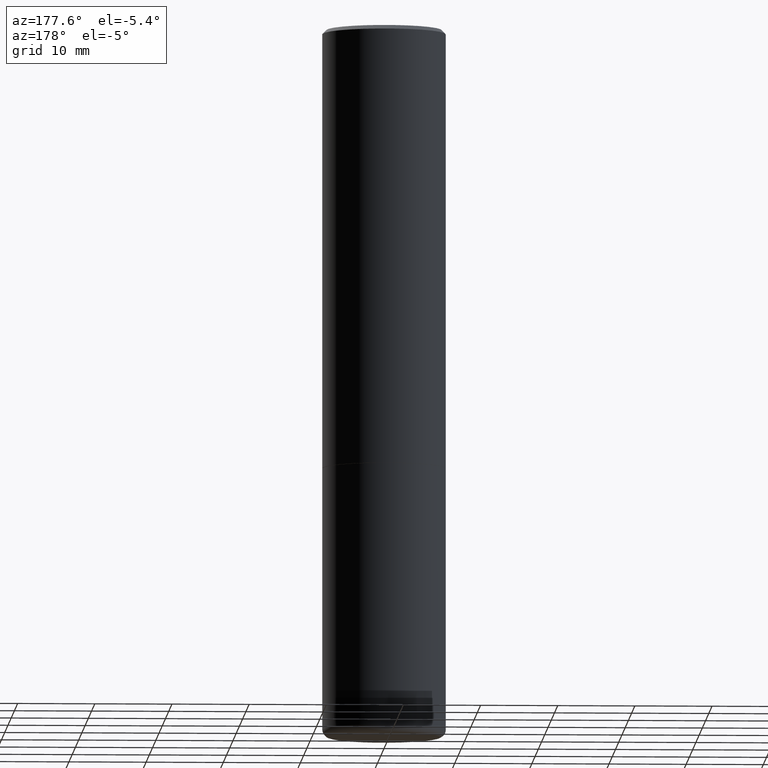
[diagram: clean part render]
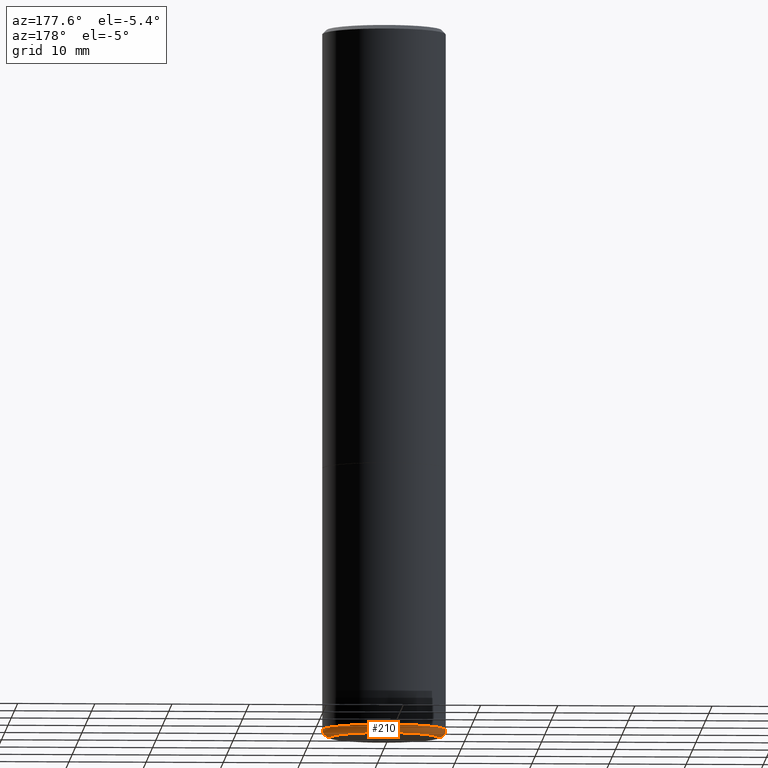
[diagram: same view with one face highlighted and labeled with its STEP entity id]
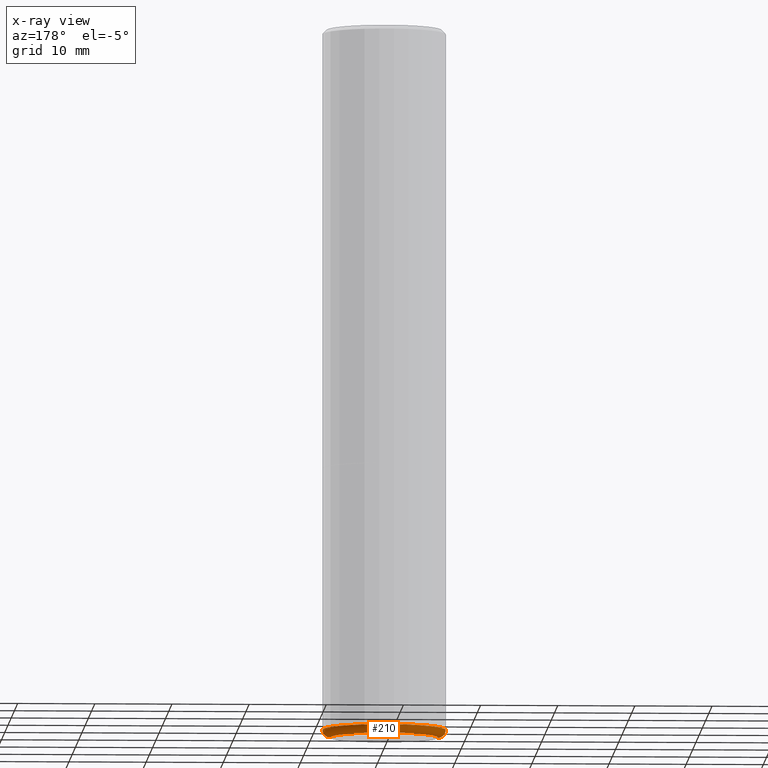
[diagram: x-ray of the same camera — body ghosted, the highlighted face saturated]
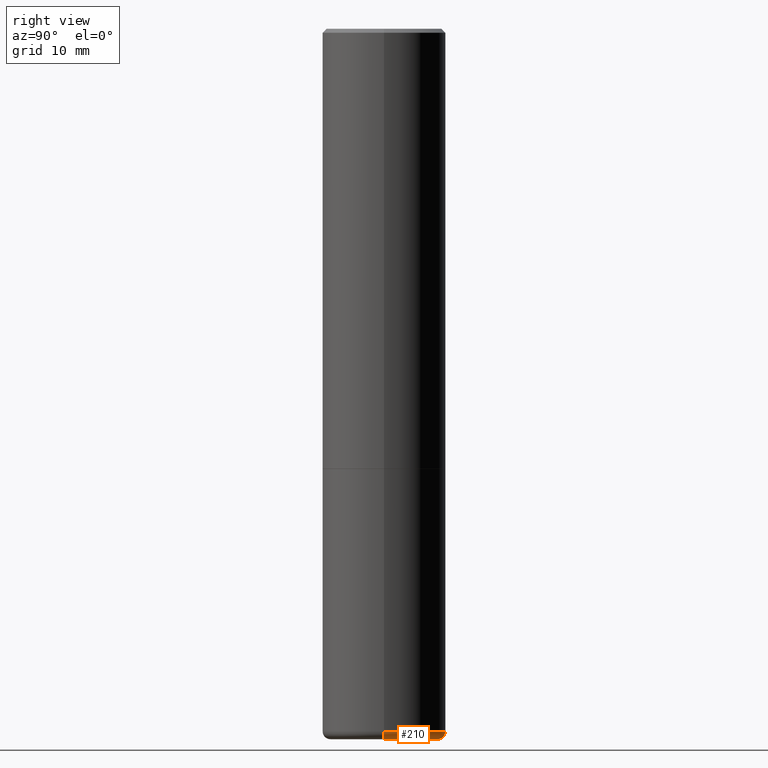
[diagram: same view with one face highlighted and labeled with its STEP entity id]
A machine part, auxiliary view. The second image highlights one B-rep face of the part: STEP entity #210.
The next image is the same camera in x-ray: the body ghosted, the highlighted face saturated — about 0% of this face is hidden behind the body in this view.
A second angle (right view) of the same face is appended — the face is thin or edge-on in the first view.
In plain terms, the highlighted toroidal blend (fillet) surface has major radius 6.999 mm and minor (blend) radius 1.0008 mm.
Its self-contained STEP definition (entity closure, byte-faithful):
#3 = DIRECTION ( 'NONE',  ( -6.982962677686266711E-15, -1.000000000000000000, 3.491481338843145583E-15 ) ) ;
#29 = DIRECTION ( 'NONE',  ( -1.000000000000000000, 7.105427357601014480E-15, 0.000000000000000000 ) ) ;
#34 = EDGE_CURVE ( 'NONE', #80, #142, #350, .T. ) ;
#36 = CIRCLE ( 'NONE', #158, 0.03940000000000005997 ) ;
#76 = EDGE_CURVE ( 'NONE', #208, #175, #244, .T. ) ;
#80 = VERTEX_POINT ( 'NONE', #125 ) ;
#92 = DIRECTION ( 'NONE',  ( -2.445468806185136597E-29, 3.491481338843145583E-15, 1.000000000000000000 ) ) ;
#101 = DIRECTION ( 'NONE',  ( 1.000000000000000000, -6.982962677686268288E-15, 4.883557194083114022E-29 ) ) ;
#123 = AXIS2_PLACEMENT_3D ( 'NONE', #342, #92, #156 ) ;
#125 = CARTESIAN_POINT ( 'NONE',  ( 0.2755500000000000171, -1.457030077512632343E-14, -3.621999999999999886 ) ) ;
#126 = CARTESIAN_POINT ( 'NONE',  ( 8.761136545038868759E-29, -1.250858104453945120E-14, -3.582599999999999785 ) ) ;
#136 = ORIENTED_EDGE ( 'NONE', *, *, #34, .T. ) ;
#142 = VERTEX_POINT ( 'NONE', #149 ) ;
#149 = CARTESIAN_POINT ( 'NONE',  ( -0.2755500000000000171, -1.047948579958296492E-14, -3.621999999999999886 ) ) ;
#156 = DIRECTION ( 'NONE',  ( 1.000000000000000000, -6.982962677686263555E-15, 0.000000000000000000 ) ) ;
#158 = AXIS2_PLACEMENT_3D ( 'NONE', #356, #3, #195 ) ;
#162 = DIRECTION ( 'NONE',  ( 7.105427357601001859E-15, 1.000000000000000000, -3.491481338843145583E-15 ) ) ;
#166 = TOROIDAL_SURFACE ( 'NONE', #409, 0.2755500000000000171, 0.03940000000000005997 ) ;
#175 = VERTEX_POINT ( 'NONE', #373 ) ;
#188 = DIRECTION ( 'NONE',  ( 1.000000000000000000, -6.982962677686268288E-15, 0.000000000000000000 ) ) ;
#195 = DIRECTION ( 'NONE',  ( 1.000000000000000000, -6.982962677686267499E-15, 0.000000000000000000 ) ) ;
#198 = DIRECTION ( 'NONE',  ( -2.445468806185136597E-29, 3.491481338843145583E-15, 1.000000000000000000 ) ) ;
#208 = VERTEX_POINT ( 'NONE', #292 ) ;
#210 = ADVANCED_FACE ( 'NONE', ( #325 ), #166, .T. ) ;
#228 = CARTESIAN_POINT ( 'NONE',  ( -0.2755500000000000171, -1.055068053615249541E-14, -3.582599999999999785 ) ) ;
#241 = EDGE_CURVE ( 'NONE', #80, #208, #36, .T. ) ;
#244 = CIRCLE ( 'NONE', #123, 0.3149500000000000077 ) ;
#267 = EDGE_CURVE ( 'NONE', #142, #175, #357, .T. ) ;
#278 = ORIENTED_EDGE ( 'NONE', *, *, #241, .F. ) ;
#282 = AXIS2_PLACEMENT_3D ( 'NONE', #228, #162, #29 ) ;
#286 = CARTESIAN_POINT ( 'NONE',  ( 8.857488016002564476E-29, -1.264614540928987199E-14, -3.621999999999999886 ) ) ;
#292 = CARTESIAN_POINT ( 'NONE',  ( 0.3149500000000000077, -1.470786513987673949E-14, -3.582599999999999785 ) ) ;
#307 = EDGE_LOOP ( 'NONE', ( #136, #332, #338, #278 ) ) ;
#325 = FACE_OUTER_BOUND ( 'NONE', #307, .T. ) ;
#332 = ORIENTED_EDGE ( 'NONE', *, *, #267, .T. ) ;
#333 = AXIS2_PLACEMENT_3D ( 'NONE', #286, #413, #188 ) ;
#338 = ORIENTED_EDGE ( 'NONE', *, *, #76, .F. ) ;
#342 = CARTESIAN_POINT ( 'NONE',  ( 8.761136545038868759E-29, -1.250858104453945120E-14, -3.582599999999999785 ) ) ;
#350 = CIRCLE ( 'NONE', #333, 0.2755500000000000171 ) ;
#356 = CARTESIAN_POINT ( 'NONE',  ( 0.2755500000000000171, -1.443273641037590422E-14, -3.582599999999999785 ) ) ;
#357 = CIRCLE ( 'NONE', #282, 0.03940000000000005997 ) ;
#373 = CARTESIAN_POINT ( 'NONE',  ( -0.3149500000000000077, -1.027072669826301679E-14, -3.582599999999999785 ) ) ;
#409 = AXIS2_PLACEMENT_3D ( 'NONE', #126, #198, #101 ) ;
#413 = DIRECTION ( 'NONE',  ( -2.445468806185136597E-29, 3.491481338843145583E-15, 1.000000000000000000 ) ) ;